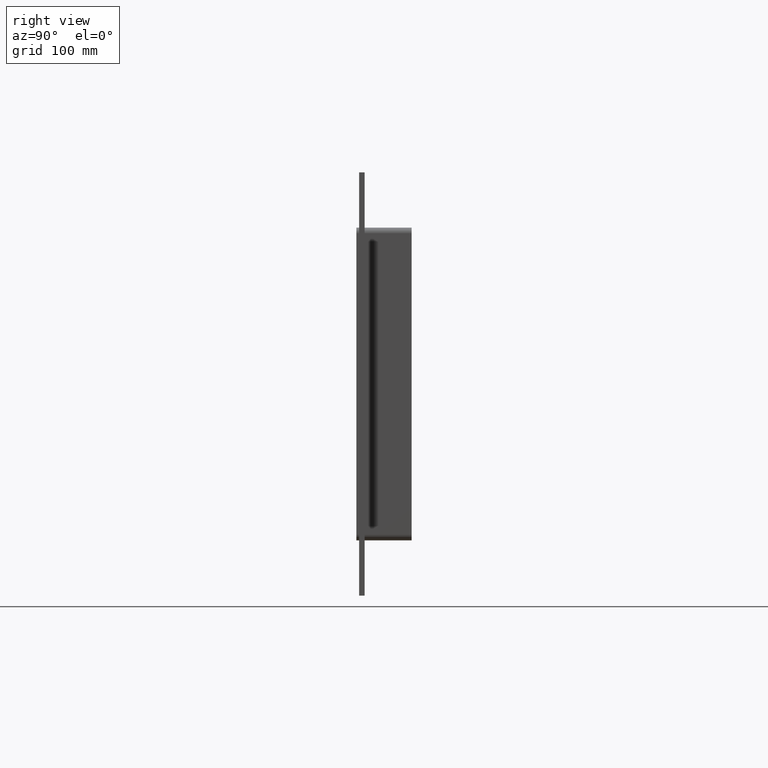
[diagram: clean part render]
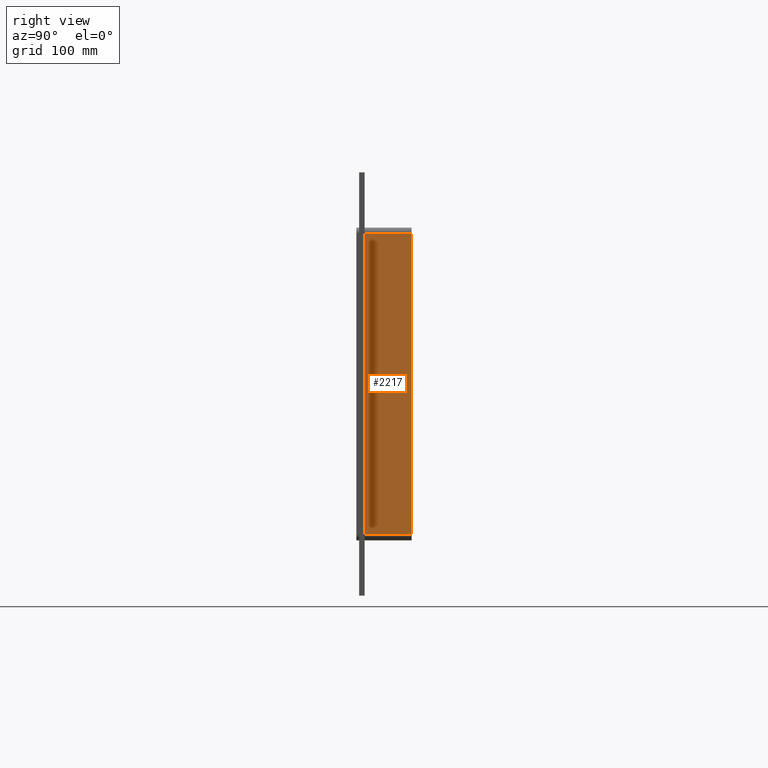
[diagram: same view with one face highlighted and labeled with its STEP entity id]
A machine part, right view. The second image highlights one B-rep face of the part: STEP entity #2217.
In plain terms, the highlighted planar face has unit normal (1, 0, 0).
Its self-contained STEP definition (entity closure, byte-faithful):
#705=CARTESIAN_POINT('',(262.0,57.0,-163.5));
#706=VERTEX_POINT('',#705);
#756=CARTESIAN_POINT('',(262.0,57.0,163.5));
#757=VERTEX_POINT('',#756);
#765=CARTESIAN_POINT('',(262.0,57.0,163.5));
#766=DIRECTION('',(0.0,0.0,-1.0));
#767=VECTOR('',#766,327.0);
#768=LINE('',#765,#767);
#769=EDGE_CURVE('',#757,#706,#768,.T.);
#1898=CARTESIAN_POINT('',(262.0,6.000000000000001,-163.5));
#1899=VERTEX_POINT('',#1898);
#1907=CARTESIAN_POINT('',(262.0,6.000000000000001,163.5));
#1908=VERTEX_POINT('',#1907);
#1909=CARTESIAN_POINT('',(262.0,6.000000000000001,163.5));
#1910=DIRECTION('',(0.0,0.0,-1.0));
#1911=VECTOR('',#1910,327.0);
#1912=LINE('',#1909,#1911);
#1913=EDGE_CURVE('',#1908,#1899,#1912,.T.);
#2168=CARTESIAN_POINT('',(262.0,6.000000000000001,163.5));
#2169=DIRECTION('',(0.0,1.0,0.0));
#2170=VECTOR('',#2169,51.0);
#2171=LINE('',#2168,#2170);
#2172=EDGE_CURVE('',#1908,#757,#2171,.T.);
#2201=CARTESIAN_POINT('',(262.0,0.0,169.50000000000003));
#2202=DIRECTION('',(1.0,0.0,0.0));
#2203=DIRECTION('',(0.0,0.0,-1.0));
#2204=AXIS2_PLACEMENT_3D('',#2201,#2202,#2203);
#2205=PLANE('',#2204);
#2206=ORIENTED_EDGE('',*,*,#1913,.T.);
#2207=CARTESIAN_POINT('',(262.0,57.0,-163.5));
#2208=DIRECTION('',(0.0,-1.0,0.0));
#2209=VECTOR('',#2208,51.0);
#2210=LINE('',#2207,#2209);
#2211=EDGE_CURVE('',#706,#1899,#2210,.T.);
#2212=ORIENTED_EDGE('',*,*,#2211,.F.);
#2213=ORIENTED_EDGE('',*,*,#769,.F.);
#2214=ORIENTED_EDGE('',*,*,#2172,.F.);
#2215=EDGE_LOOP('',(#2206,#2212,#2213,#2214));
#2216=FACE_OUTER_BOUND('',#2215,.T.);
#2217=ADVANCED_FACE('',(#2216),#2205,.T.);